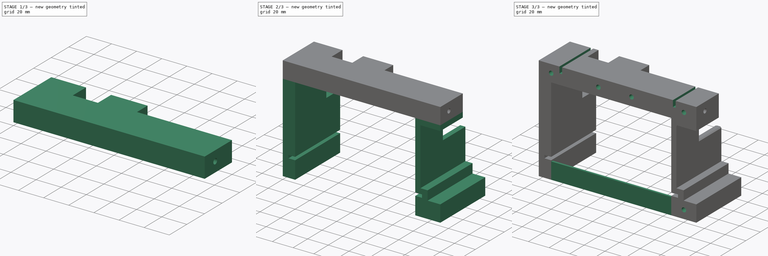
[diagram: build sequence overview — one tinted view per stage of 3, left to right]
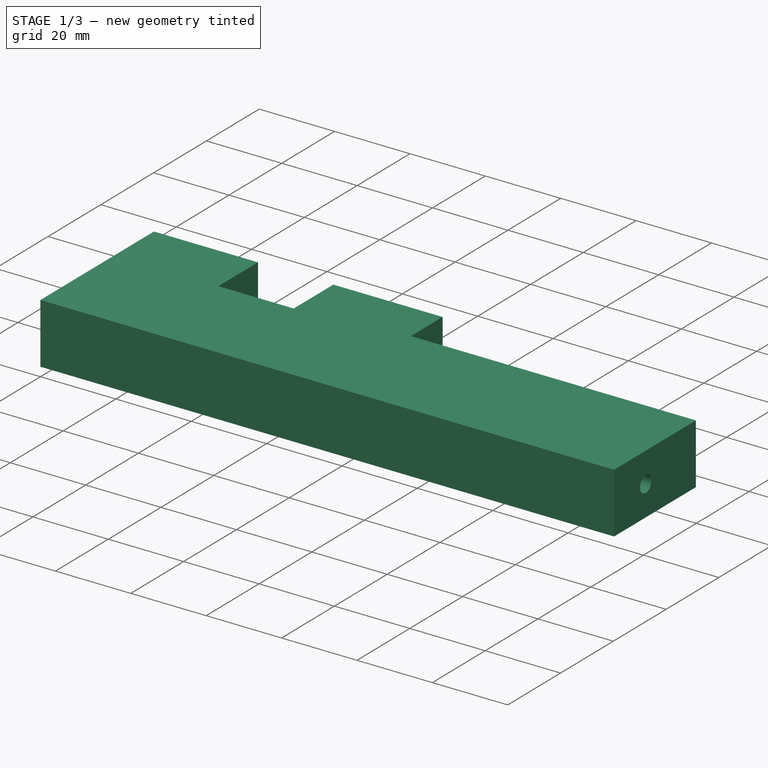
[diagram: stage 1 of 3 — iso view after this stage's code; geometry added in this stage tinted green]
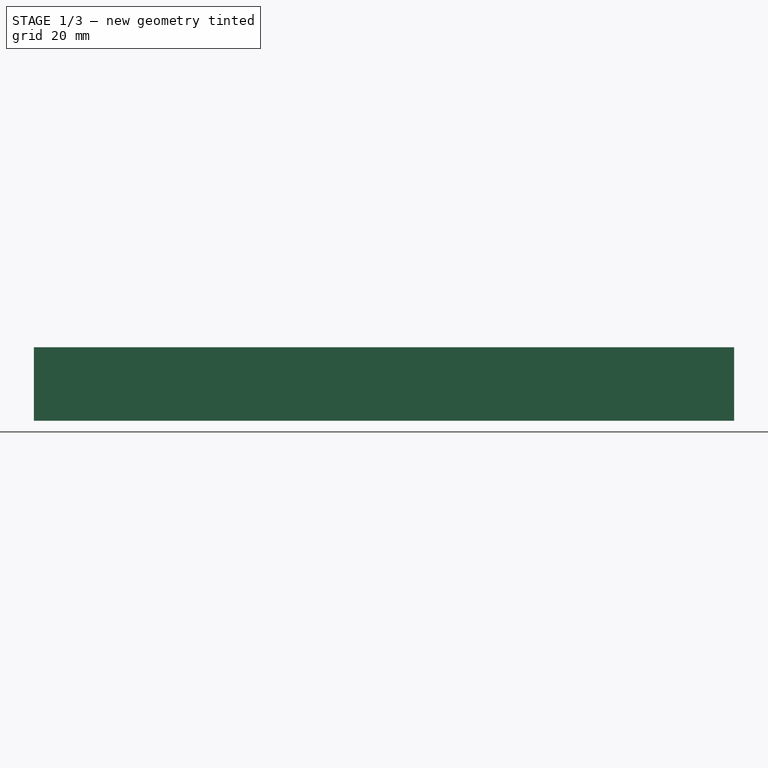
[diagram: stage 1 of 3 — front view after this stage's code; geometry added in this stage tinted green]
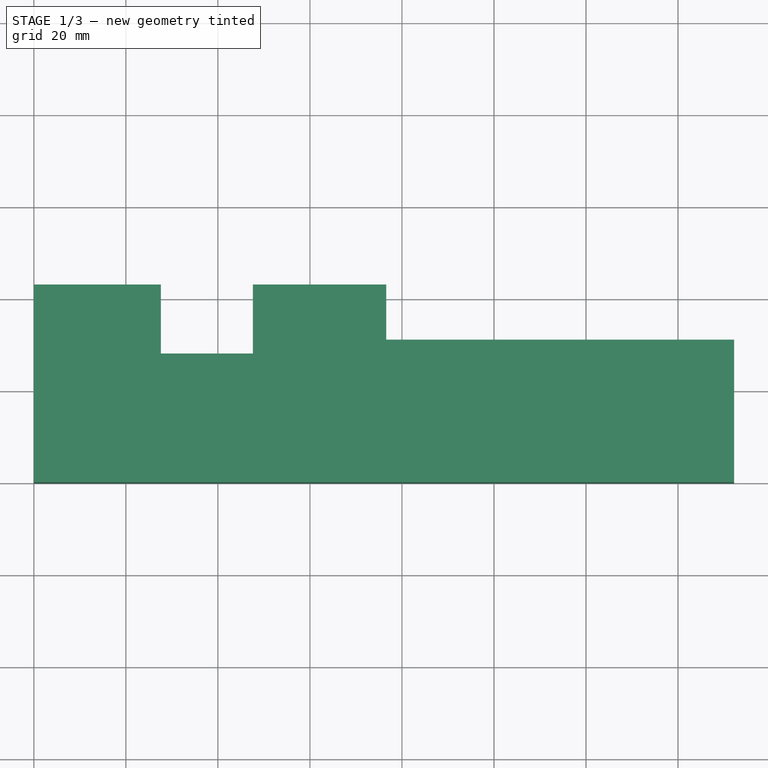
[diagram: stage 1 of 3 — top view after this stage's code; geometry added in this stage tinted green]
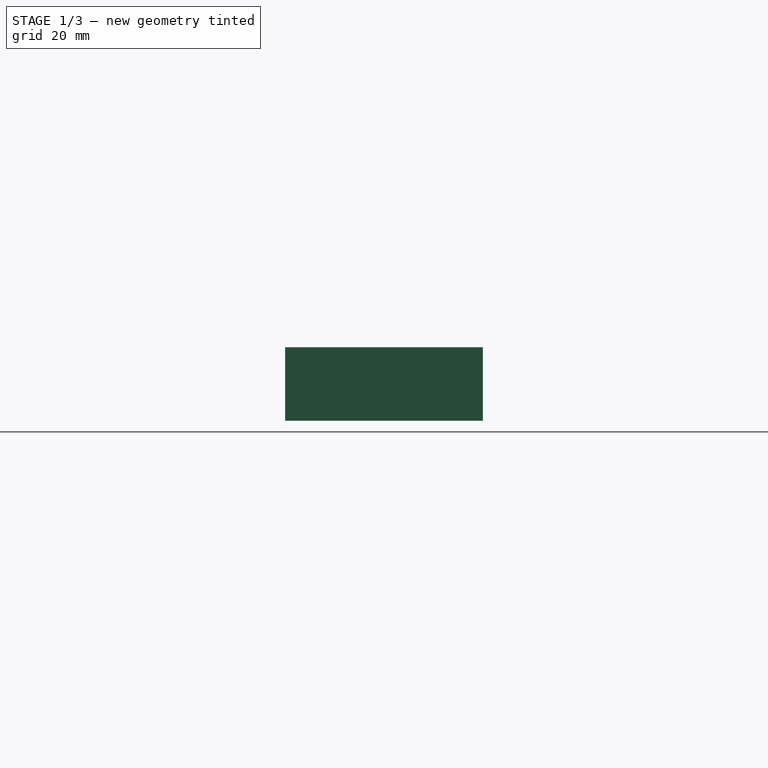
[diagram: stage 1 of 3 — right view after this stage's code; geometry added in this stage tinted green]
FCSTD DOCUMENT  (FreeCAD 0.21R33668 +7 (Git))
Label: ES-holder-end-other
License: All rights reserved
LicenseURL: http://en.wikipedia.org/wiki/All_rights_reserved
objects: Sketcher::SketchObject×7, PartDesign::Pocket×4, PartDesign::Pad×3, PartDesign::CoordinateSystem×1, PartDesign::Plane×1, PartDesign::Chamfer×1, PartDesign::Body×1, App::Part×1
note: 26 computed .brp shape members not serialized (recipe doc carries the construction recipe); baked Part::Feature solids carry a one-line shape summary decoded from their .brp
EXTERNAL_REF file=planB.FCStd obj=Spreadsheet

FEATURE [Sketcher::SketchObject] Sketch
  FullyConstrained = false
  MapMode = 5
  Support = -> [XY_Plane]
  expr: Constraints[33] = <<planB>>#<<data>>.es3_d + 1
  expr: Constraints[34] = <<planB>>#<<data>>.es6_d
  sketch-geometry (19):
    g0: LineSegment StartX=0 StartY=0 StartZ=0 EndX=0 EndY=43 EndZ=0
    g1: LineSegment StartX=152.2 StartY=31 StartZ=0 EndX=152.2 EndY=0 EndZ=0
    g2: LineSegment StartX=152.2 StartY=0 StartZ=0 EndX=0 EndY=0 EndZ=0
    g3: LineSegment StartX=22.6 StartY=-1.74507e-05 StartZ=0 EndX=20 EndY=-1.74507e-05 EndZ=0
    g4: LineSegment StartX=20 StartY=-1.74507e-05 StartZ=0 EndX=20 EndY=43 EndZ=0
    g5: LineSegment StartX=20 StartY=43 StartZ=0 EndX=22.6 EndY=43 EndZ=0
    g6: LineSegment StartX=22.6 StartY=43 StartZ=0 EndX=22.6 EndY=-1.74507e-05 EndZ=0
    g7: LineSegment StartX=132.2 StartY=0 StartZ=0 EndX=129.6 EndY=0 EndZ=0
    g8: LineSegment StartX=129.6 StartY=0 StartZ=0 EndX=129.6 EndY=31 EndZ=0
    g9: LineSegment StartX=129.6 StartY=31 StartZ=0 EndX=132.2 EndY=31 EndZ=0
    g10: LineSegment StartX=132.2 StartY=31 StartZ=0 EndX=132.2 EndY=0 EndZ=0
    g11: LineSegment StartX=76.6 StartY=43 StartZ=0 EndX=76.6 EndY=31 EndZ=0
    g12: LineSegment StartX=76.6 StartY=31 StartZ=0 EndX=152.2 EndY=31 EndZ=0
    g13: LineSegment StartX=27.6 StartY=43 StartZ=0 EndX=27.6 EndY=28 EndZ=0
    g14: LineSegment StartX=27.6 StartY=28 StartZ=0 EndX=47.6 EndY=28 EndZ=0
    g15: LineSegment StartX=47.6 StartY=28 StartZ=0 EndX=47.6 EndY=43 EndZ=0
    g16: LineSegment StartX=0 StartY=43 StartZ=0 EndX=27.6 EndY=43 EndZ=0
    g17: LineSegment StartX=27.6 StartY=43 StartZ=0 EndX=47.6 EndY=43 EndZ=0
    g18: LineSegment StartX=47.6 StartY=43 StartZ=0 EndX=76.6 EndY=43 EndZ=0
  constraints (54):
    c: Coincident(g-1,g0)
    c: PointOnObject(g0,g-2)
    c: Coincident(g0,g16)
    c: Coincident(g12,g1)
    c: PointOnObject(g1,g-1)
    c: Vertical(g1)
    c: Coincident(g1,g2)
    c: Coincident(g3,g4)
    c: Coincident(g4,g5)
    c: Coincident(g5,g6)
    c: Coincident(g6,g3)
    c: Horizontal(g3)
    c: Horizontal(g5)
    c: Vertical(g4)
    c: Vertical(g6)
    c: Coincident(g7,g8)
    c: Coincident(g8,g9)
    c: Coincident(g9,g10)
    c: Coincident(g10,g7)
    c: Horizontal(g7)
    c: Horizontal(g9)
    c: Vertical(g8)
    c: Vertical(g10)
    c: PointOnObject(g7,g2)
    c: Equal(g3,g7)
    c: Distance(g3,g4) = 2.6
    c: Coincident(g18,g11)
    c: Coincident(g11,g12)
    c: Horizontal(g12)
    c: PointOnObject(g8,g12)
    c: Vertical(g11)
    c: Distance(g0) = 43
    c: Distance(g1) = 31
    c: Distance(g5,g11) = 54
    c: Distance(g11,g8) = 53
    c: Distance(g7,g1) = 20
    c: Distance(g3,g0) = 20
    c: Coincident(g2,g0)
    c: Coincident(g13,g14)
    c: Horizontal(g14)
    c: Coincident(g14,g15)
    c: Vertical(g15)
    c: Coincident(g16,g17)
    c: Horizontal(g16)
    c: PointOnObject(g4,g16)
    c: Coincident(g17,g18)
    c: Horizontal(g17)
    c: Horizontal(g18)
    c: Coincident(g17,g15)
    c: Coincident(g16,g13)
    c: Vertical(g13)
    c: Distance(g13) = 15
    c: Distance(g14) = 20
    c: Distance(g5,g13) = 5
FEATURE [PartDesign::Pad] Pad
  Direction = (0,0,1)
  Length = 16
  Length2 = 10
  Profile = -> Sketch
  ReferenceAxis = -> Sketch [N_Axis]
  Type = 0
FEATURE [Sketcher::SketchObject] Sketch001
  FullyConstrained = false
  MapMode = 5
  Placement = pos=(0,0,0) rot=(1,0,0;1.5708rad)
  Support = -> [XZ_Plane]
  expr: Constraints[52] = <<planB>>#<<data>>.es6_d + 1 + <<planB>>#<<data>>.es3_d
  expr: Constraints[60] = <<planB>>#<<data>>.insert_diameter
  expr: Constraints[61] = <<planB>>#<<data>>.insert_d + 5
  sketch-geometry (27):
    g0: LineSegment StartX=20 StartY=0 StartZ=0 EndX=20 EndY=17.2745 EndZ=0
    g1: LineSegment StartX=132.2 StartY=0 StartZ=0 EndX=132.2 EndY=26.3444 EndZ=0
    g2: LineSegment StartX=20 StartY=0 StartZ=0 EndX=22.6 EndY=0 EndZ=0
    g3: LineSegment StartX=22.6 StartY=0 StartZ=0 EndX=22.6 EndY=6 EndZ=0
    g4: LineSegment StartX=22.6 StartY=6 StartZ=0 EndX=20 EndY=6 EndZ=0
    g5: LineSegment StartX=20 StartY=6 StartZ=0 EndX=20 EndY=0 EndZ=0
    g6: LineSegment StartX=20 StartY=10 StartZ=0 EndX=22.6 EndY=10 EndZ=0
    g7: LineSegment StartX=22.6 StartY=10 StartZ=0 EndX=22.6 EndY=16 EndZ=0
    g8: LineSegment StartX=22.6 StartY=16 StartZ=0 EndX=20 EndY=16 EndZ=0
    g9: LineSegment StartX=20 StartY=16 StartZ=0 EndX=20 EndY=10 EndZ=0
    g10: LineSegment StartX=132.2 StartY=10 StartZ=0 EndX=129.6 EndY=10 EndZ=0
    g11: LineSegment StartX=129.6 StartY=10 StartZ=0 EndX=129.6 EndY=16 EndZ=0
    g12: LineSegment StartX=129.6 StartY=16 StartZ=0 EndX=132.2 EndY=16 EndZ=0
    g13: LineSegment StartX=132.2 StartY=16 StartZ=0 EndX=132.2 EndY=10 EndZ=0
    g14: LineSegment StartX=132.2 StartY=6 StartZ=0 EndX=129.6 EndY=6 EndZ=0
    g15: LineSegment StartX=129.6 StartY=6 StartZ=0 EndX=129.6 EndY=0 EndZ=0
    g16: LineSegment StartX=129.6 StartY=0 StartZ=0 EndX=132.2 EndY=0 EndZ=0
    g17: LineSegment StartX=132.2 StartY=0 StartZ=0 EndX=132.2 EndY=6 EndZ=0
    g18: Circle CenterX=12 CenterY=8 CenterZ=0 NormalX=0 NormalY=0 NormalZ=1 AngleXU=0 Radius=2.15
    g19: Circle CenterX=89.6 CenterY=8 CenterZ=0 NormalX=0 NormalY=0 NormalZ=1 AngleXU=0 Radius=2.15
    g20: Circle CenterX=140.2 CenterY=8 CenterZ=0 NormalX=0 NormalY=0 NormalZ=1 AngleXU=0 Radius=2.15
    g21: LineSegment StartX=12 StartY=8 StartZ=0 EndX=140.2 EndY=8 EndZ=0
    g22: Circle CenterX=57.6 CenterY=8 CenterZ=0 NormalX=0 NormalY=0 NormalZ=1 AngleXU=0 Radius=2.15
    g23: Circle CenterX=12 CenterY=-77 CenterZ=0 NormalX=0 NormalY=0 NormalZ=1 AngleXU=0 Radius=2.15
    g24: Circle CenterX=140.2 CenterY=-77 CenterZ=0 NormalX=0 NormalY=0 NormalZ=1 AngleXU=0 Radius=2.15
    g25: LineSegment StartX=12 StartY=-77 StartZ=0 EndX=140.2 EndY=-77 EndZ=0
    g26: LineSegment StartX=12 StartY=8 StartZ=0 EndX=12 EndY=-77 EndZ=0
  constraints (77):
    c: PointOnObject(g0,g-1)
    c: Vertical(g0)
    c: PointOnObject(g1,g-1)
    c: Vertical(g1)
    c: DistanceX(g0) = 20
    c: Coincident(g2,g3)
    c: Coincident(g3,g4)
    c: Coincident(g4,g5)
    c: Coincident(g5,g2)
    c: Horizontal(g2)
    c: Horizontal(g4)
    c: Vertical(g3)
    c: Vertical(g5)
    c: Coincident(g2,g0)
    c: Coincident(g6,g7)
    c: Coincident(g7,g8)
    c: Coincident(g8,g9)
    c: Coincident(g9,g6)
    c: Horizontal(g6)
    c: Horizontal(g8)
    c: Vertical(g7)
    c: Vertical(g9)
    c: PointOnObject(g6,g0)
    c: Coincident(g10,g11)
    c: Coincident(g11,g12)
    c: Coincident(g12,g13)
    c: Coincident(g13,g10)
    c: Horizontal(g10)
    c: Horizontal(g12)
    c: Vertical(g11)
    c: Vertical(g13)
    c: PointOnObject(g10,g1)
    c: Coincident(g14,g15)
    c: Coincident(g15,g16)
    c: Coincident(g16,g17)
    c: Coincident(g17,g14)
    c: Horizontal(g14)
    c: Horizontal(g16)
    c: Vertical(g15)
    c: Vertical(g17)
    c: PointOnObject(g14,g1)
    c: PointOnObject(g15,g-1)
    c: Equal(g2,g16)
    c: Equal(g16,g10)
    c: Equal(g10,g8)
    c: Equal(g3,g7)
    c: Equal(g7,g11)
    c: Equal(g11,g15)
    c: Distance(g16) = 2.6
    c: Distance(g11) = 6
    c: Distance(g14,g10) = 4
    c: Distance(g4,g6) = 4
    c: Distance(g7,g11) = 107
    c: Coincident(g21,g18)
    c: Coincident(g21,g20)
    c: Horizontal(g21)
    c: PointOnObject(g19,g21)
    c: Equal(g20,g19)
    c: Equal(g19,g18)
    c: DistanceY(g18) = 8
    c: Diameter(g18) = 4.3
    c: DistanceX(g18) = 12
    c: PointOnObject(g22,g21)
    c: Equal(g22,g19)
    c: Distance(g22,g3) = 35
    c: Distance(g19,g11) = 40
    c: Distance(g20,g13) = 8
    c: Equal(g24,g23)
    c: Equal(g23,g22)
    c: Coincident(g25,g23)
    c: Coincident(g25,g24)
    c: Horizontal(g25)
    c: Equal(g21,g25)
    c: Coincident(g26,g18)
    c: Coincident(g26,g23)
    c: Vertical(g26)
    c: Distance(g26) = 85
FEATURE [PartDesign::CoordinateSystem] LCS_0
  AttacherType = Attacher::AttachEngine3D
  MapMode = 2
  Support = -> [X_Axis001]
FEATURE [Sketcher::SketchObject] Sketch002
  FullyConstrained = true
  MapMode = 5
  Placement = pos=(0,0,0) rot=(0.57735,0.57735,0.57735;2.0944rad)
  Support = -> [YZ_Plane]
  expr: Constraints[0] = <<planB>>#<<data>>.insert_d + 5
  expr: Constraints[2] = <<planB>>#<<data>>.insert_diameter
  sketch-geometry (1):
    g0: Circle CenterX=12 CenterY=8 CenterZ=0 NormalX=0 NormalY=0 NormalZ=1 AngleXU=0 Radius=2.15
  constraints (3):
    c: DistanceX(g0) = 12
    c: DistanceY(g0) = 8
    c: Diameter(g0) = 4.3
FEATURE [PartDesign::Pocket] Pocket001
  BaseFeature = -> Pad
  Direction = (-1,2e-16,-3e-16)
  Length = 8
  Length2 = 5
  Profile = -> Sketch002
  ReferenceAxis = -> Sketch002 [N_Axis]
  Reversed = true
  Type = 0
  expr: Length = <<planB>>#<<data>>.insert_d + 1
FEATURE [PartDesign::Plane] DatumPlane
  AttachmentOffset = pos=(0,0,152.2) rot=(0,0,1;0rad)
  Length = 60
  MapMode = 5
  Placement = pos=(152.2,-3.38e-14,3.38e-14) rot=(0.57735,0.57735,0.57735;2.0944rad)
  ResizeMode = 0
  Support = -> [YZ_Plane]
  Width = 60
FEATURE [Sketcher::SketchObject] Sketch003
  FullyConstrained = true
  MapMode = 5
  Placement = pos=(152.2,-3.38e-14,3.38e-14) rot=(0.57735,0.57735,0.57735;2.0944rad)
  Support = -> [DatumPlane]
  expr: Constraints[0] = <<planB>>#<<data>>.insert_diameter
  expr: Constraints[1] = <<planB>>#<<data>>.insert_d + 5
  sketch-geometry (1):
    g0: Circle CenterX=12 CenterY=8 CenterZ=0 NormalX=0 NormalY=0 NormalZ=1 AngleXU=0 Radius=2.15
  constraints (3):
    c: Diameter(g0) = 4.3
    c: DistanceX(g0) = 12
    c: DistanceY(g0) = 8
FEATURE [PartDesign::Pocket] Pocket002
  BaseFeature = -> Pocket001
  Direction = (-1,1e-16,-1e-16)
  Length = 8
  Length2 = 5
  Profile = -> Sketch003
  ReferenceAxis = -> Sketch003 [N_Axis]
  Type = 0
  expr: Length = <<planB>>#<<data>>.insert_d + 1
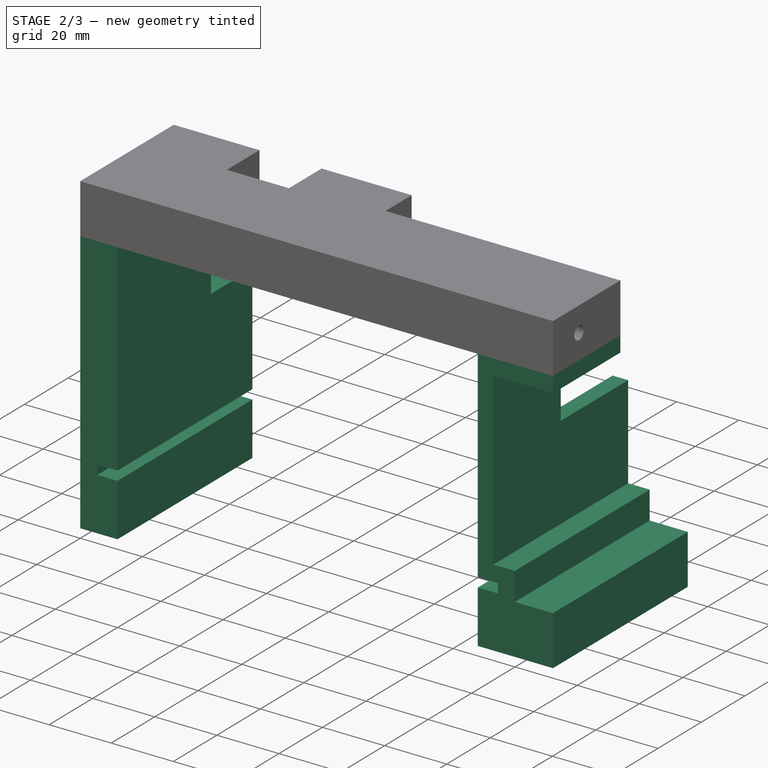
[diagram: stage 2 of 3 — iso view after this stage's code; geometry added in this stage tinted green]
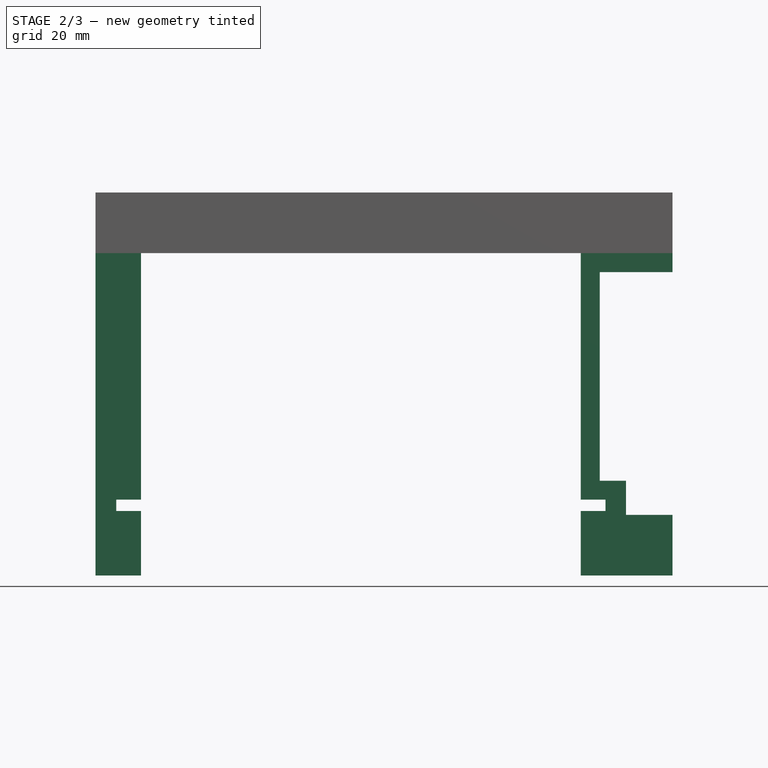
[diagram: stage 2 of 3 — front view after this stage's code; geometry added in this stage tinted green]
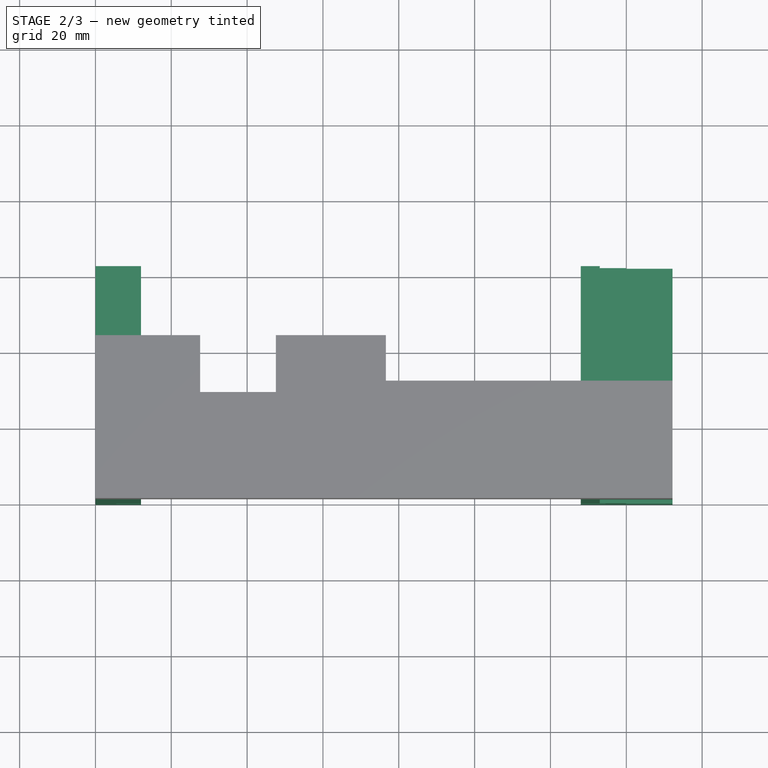
[diagram: stage 2 of 3 — top view after this stage's code; geometry added in this stage tinted green]
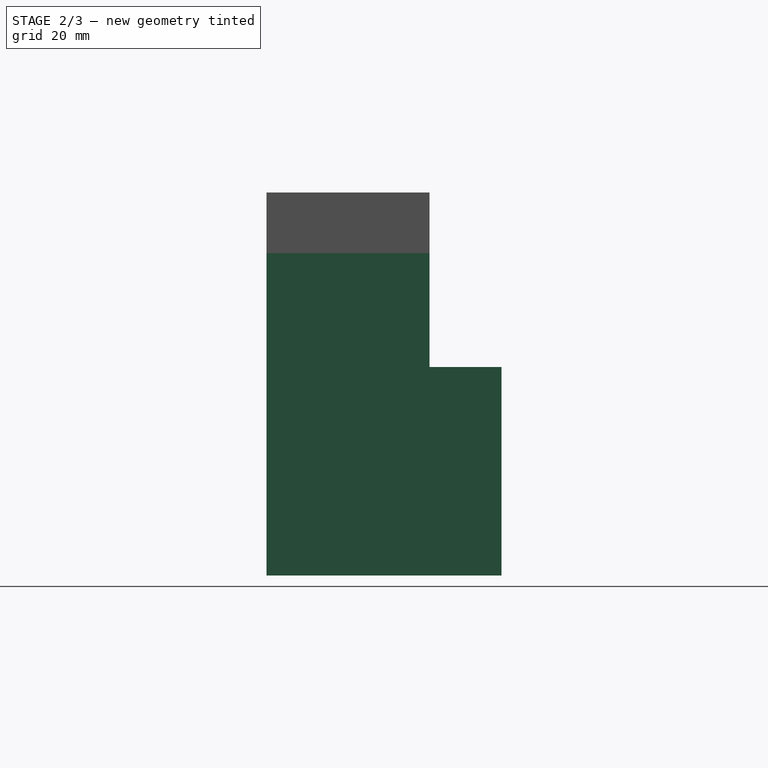
[diagram: stage 2 of 3 — right view after this stage's code; geometry added in this stage tinted green]
FEATURE [Sketcher::SketchObject] Sketch004
  FullyConstrained = false
  MapMode = 5
  Placement = pos=(0,0,0) rot=(1,0,0;1.5708rad)
  Support = -> [XZ_Plane]
  sketch-geometry (25):
    g0: LineSegment StartX=128 StartY=0 StartZ=0 EndX=152.2 EndY=0 EndZ=0
    g1: LineSegment StartX=128 StartY=-65 StartZ=0 EndX=128 EndY=0 EndZ=0
    g2: LineSegment StartX=0 StartY=0 StartZ=0 EndX=12 EndY=0 EndZ=0
    g3: LineSegment StartX=12 StartY=0 StartZ=0 EndX=12 EndY=-65 EndZ=0
    g4: LineSegment StartX=0 StartY=-65 StartZ=0 EndX=0 EndY=0 EndZ=0
    g5: LineSegment StartX=0 StartY=-65 StartZ=0 EndX=0 EndY=-85 EndZ=0
    g6: LineSegment StartX=0 StartY=-85 StartZ=0 EndX=12 EndY=-85 EndZ=0
    g7: LineSegment StartX=12 StartY=-85 StartZ=0 EndX=12 EndY=-68 EndZ=0
    g8: LineSegment StartX=12 StartY=-68 StartZ=0 EndX=5.5 EndY=-68 EndZ=0
    g9: LineSegment StartX=5.5 StartY=-68 StartZ=0 EndX=5.5 EndY=-65 EndZ=0
    g10: LineSegment StartX=134.5 StartY=-65 StartZ=0 EndX=134.5 EndY=-68 EndZ=0
    g11: LineSegment StartX=134.5 StartY=-68 StartZ=0 EndX=128 EndY=-68 EndZ=0
    g12: LineSegment StartX=128 StartY=-68 StartZ=0 EndX=128 EndY=-85 EndZ=0
    g13: LineSegment StartX=128 StartY=-85 StartZ=0 EndX=152.2 EndY=-85 EndZ=0
    g14: LineSegment StartX=152.2 StartY=-85 StartZ=0 EndX=152.2 EndY=-69 EndZ=0
    g15: LineSegment StartX=12 StartY=-65 StartZ=0 EndX=5.5 EndY=-65 EndZ=0
    g16: LineSegment StartX=5.5 StartY=-65 StartZ=0 EndX=0 EndY=-65 EndZ=0
    g17: LineSegment StartX=134.5 StartY=-65 StartZ=0 EndX=128 EndY=-65 EndZ=0
    g18: LineSegment StartX=152.2 StartY=0 StartZ=0 EndX=152.2 EndY=-5 EndZ=0
    g19: LineSegment StartX=152.2 StartY=-5 StartZ=0 EndX=152.2 EndY=-69 EndZ=0
    g20: LineSegment StartX=152.2 StartY=-5 StartZ=0 EndX=133 EndY=-5 EndZ=0
    g21: LineSegment StartX=133 StartY=-5 StartZ=0 EndX=133 EndY=-60 EndZ=0
    g22: LineSegment StartX=133 StartY=-60 StartZ=0 EndX=139.92 EndY=-60 EndZ=0
    g23: LineSegment StartX=139.92 StartY=-60 StartZ=0 EndX=139.92 EndY=-69 EndZ=0
    g24: LineSegment StartX=139.92 StartY=-69 StartZ=0 EndX=152.2 EndY=-69 EndZ=0
  constraints (71):
    c: Coincident(g0,g18)
    c: Coincident(g17,g1)
    c: Coincident(g1,g0)
    c: Horizontal(g0)
    c: Vertical(g1)
    c: PointOnObject(g0,g-1)
    c: Coincident(g2,g3)
    c: Coincident(g3,g15)
    c: Coincident(g16,g4)
    c: Coincident(g4,g2)
    c: Horizontal(g2)
    c: Vertical(g3)
    c: Vertical(g4)
    c: Equal(g3,g1)
    c: Distance(g2,g1) = 116
    c: DistanceX(g2,g2) = 12
    c: Coincident(g2,g-1)
    c: Coincident(g16,g5)
    c: Vertical(g5)
    c: Coincident(g5,g6)
    c: Horizontal(g6)
    c: Coincident(g6,g7)
    c: Vertical(g7)
    c: Coincident(g7,g8)
    c: Horizontal(g8)
    c: Coincident(g8,g9)
    c: Vertical(g10)
    c: Coincident(g10,g11)
    c: Horizontal(g11)
    c: Coincident(g11,g12)
    c: Vertical(g12)
    c: Coincident(g12,g13)
    c: Horizontal(g13)
    c: Coincident(g13,g14)
    c: Vertical(g14)
    c: Vertical(g9)
    c: Coincident(g15,g16)
    c: Horizontal(g15)
    c: Horizontal(g16)
    c: Horizontal(g17)
    c: Coincident(g17,g10)
    c: Coincident(g9,g15)
    c: Equal(g9,g10)
    c: Equal(g17,g15)
    c: Equal(g7,g12)
    c: Distance(g9) = 3
    c: PointOnObject(g3,g7)
    c: DistanceY(g7,g7) = 17
    c: Distance(g15) = 6.5
    c: PointOnObject(g11,g1)
    c: DistanceX(g0) = 152.2
    c: Vertical(g18)
    c: Vertical(g19)
    c: Horizontal(g20)
    c: Coincident(g20,g21)
    c: Vertical(g21)
    c: Coincident(g21,g22)
    c: Horizontal(g22)
    c: Distance(g20,g1) = 5
    c: DistanceY(g4,g4) = 65
    c: Coincident(g22,g23)
    c: Vertical(g23)
    c: Coincident(g23,g24)
    c: Coincident(g24,g14)
    c: Horizontal(g24)
    c: Coincident(g19,g14)
    c: DistanceY(g18,g18) = 5
    c: Distance(g21,g17) = 5
    c: Coincident(g20,g19)
    c: Coincident(g18,g20)
    c: DistanceY(g14,g14) = 16
FEATURE [PartDesign::Pad] Pad001
  BaseFeature = -> Pocket002
  Direction = (0,-1,-2e-16)
  Length = 62
  Length2 = 10
  Profile = -> Sketch004
  ReferenceAxis = -> Sketch004 [N_Axis]
  Reversed = true
  Type = 0
FEATURE [Sketcher::SketchObject] Sketch005
  FullyConstrained = false
  MapMode = 5
  Support = -> [XY_Plane]
  expr: Constraints[35] = <<planB>>#<<data>>.es3_d + 1
  expr: Constraints[36] = <<planB>>#<<data>>.es6_d
  sketch-geometry (18):
    g0: LineSegment StartX=0 StartY=0 StartZ=0 EndX=0 EndY=43 EndZ=0
    g1: LineSegment StartX=152.2 StartY=31 StartZ=0 EndX=152.2 EndY=0 EndZ=0
    g2: LineSegment StartX=152.2 StartY=0 StartZ=0 EndX=0 EndY=0 EndZ=0
    g3: LineSegment StartX=22.6 StartY=0 StartZ=0 EndX=20 EndY=0 EndZ=0
    g4: LineSegment StartX=20 StartY=0 StartZ=0 EndX=20 EndY=43 EndZ=0
    g5: LineSegment StartX=20 StartY=43 StartZ=0 EndX=22.6 EndY=43 EndZ=0
    g6: LineSegment StartX=22.6 StartY=43 StartZ=0 EndX=22.6 EndY=0 EndZ=0
    g7: LineSegment StartX=132.2 StartY=0 StartZ=0 EndX=129.6 EndY=0 EndZ=0
    g8: LineSegment StartX=129.6 StartY=0 StartZ=0 EndX=129.6 EndY=31 EndZ=0
    g9: LineSegment StartX=129.6 StartY=31 StartZ=0 EndX=132.2 EndY=31 EndZ=0
    g10: LineSegment StartX=132.2 StartY=31 StartZ=0 EndX=132.2 EndY=0 EndZ=0
    g11: LineSegment StartX=0 StartY=43 StartZ=0 EndX=76.6 EndY=43 EndZ=0
    g12: LineSegment StartX=76.6 StartY=43 StartZ=0 EndX=76.6 EndY=31 EndZ=0
    g13: LineSegment StartX=76.6 StartY=31 StartZ=0 EndX=152.2 EndY=31 EndZ=0
    g14: LineSegment StartX=-256.513 StartY=459.686 StartZ=0 EndX=467.29 EndY=459.686 EndZ=0
    g15: LineSegment StartX=467.29 StartY=459.686 StartZ=0 EndX=467.29 EndY=-198.667 EndZ=0
    g16: LineSegment StartX=467.29 StartY=-198.667 StartZ=0 EndX=-256.513 EndY=-198.667 EndZ=0
    g17: LineSegment StartX=-256.513 StartY=-198.667 StartZ=0 EndX=-256.513 EndY=459.686 EndZ=0
  constraints (48):
    c: Coincident(g-1,g0)
    c: PointOnObject(g0,g-2)
    c: Coincident(g0,g11)
    c: Coincident(g13,g1)
    c: PointOnObject(g1,g-1)
    c: Vertical(g1)
    c: Coincident(g1,g2)
    c: Coincident(g3,g4)
    c: Coincident(g4,g5)
    c: Coincident(g5,g6)
    c: Coincident(g6,g3)
    c: Horizontal(g3)
    c: Horizontal(g5)
    c: Vertical(g4)
    c: Vertical(g6)
    c: Coincident(g7,g8)
    c: Coincident(g8,g9)
    c: Coincident(g9,g10)
    c: Coincident(g10,g7)
    c: Horizontal(g7)
    c: Horizontal(g9)
    c: Vertical(g8)
    c: Vertical(g10)
    c: PointOnObject(g7,g2)
    c: Equal(g3,g7)
    c: Distance(g3,g4) = 2.6
    c: Coincident(g11,g12)
    c: Horizontal(g11)
    c: PointOnObject(g4,g11)
    c: Coincident(g12,g13)
    c: Horizontal(g13)
    c: PointOnObject(g8,g13)
    c: Vertical(g12)
    c: Distance(g0) = 43
    c: Distance(g1) = 31
    c: Distance(g5,g12) = 54
    c: Distance(g12,g8) = 53
    c: Distance(g7,g1) = 20
    c: Distance(g3,g0) = 20
    c: Coincident(g2,g0)
    c: Coincident(g14,g15)
    c: Coincident(g15,g16)
    c: Coincident(g16,g17)
    c: Coincident(g17,g14)
    c: Horizontal(g14)
    c: Horizontal(g16)
    c: Vertical(g15)
    c: Vertical(g17)
FEATURE [PartDesign::Pocket] Pocket003
  BaseFeature = -> Pad001
  Direction = (0,0,-1)
  Length = 30
  Length2 = 5
  Profile = -> Sketch005
  ReferenceAxis = -> Sketch005 [N_Axis]
  Type = 0
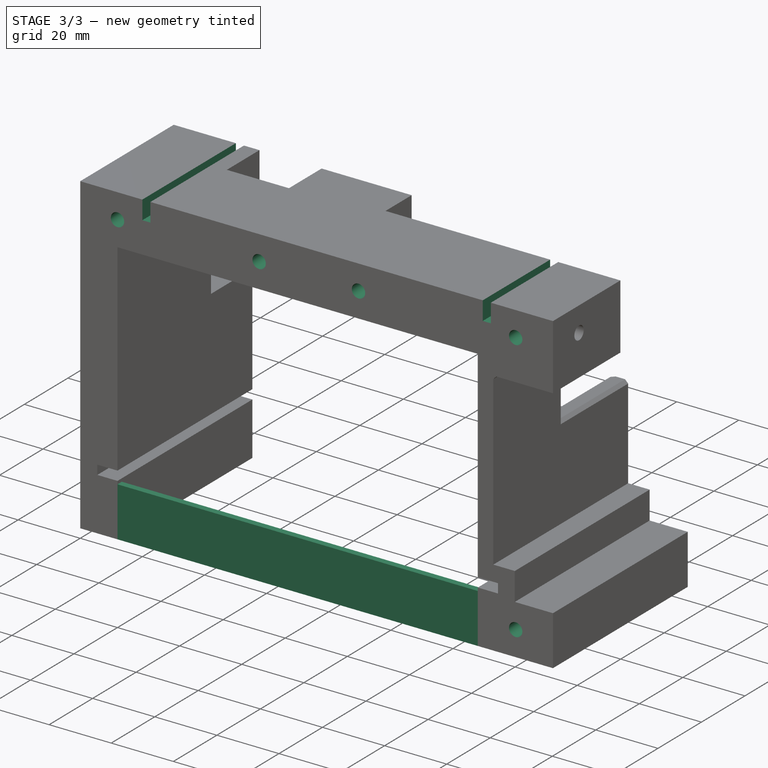
[diagram: stage 3 of 3 — iso view after this stage's code; geometry added in this stage tinted green]
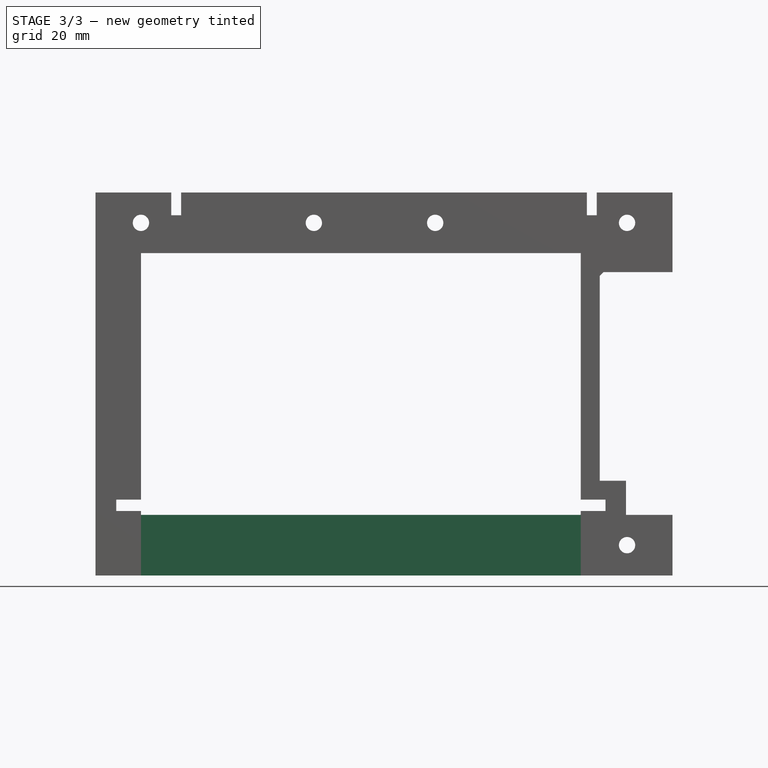
[diagram: stage 3 of 3 — front view after this stage's code; geometry added in this stage tinted green]
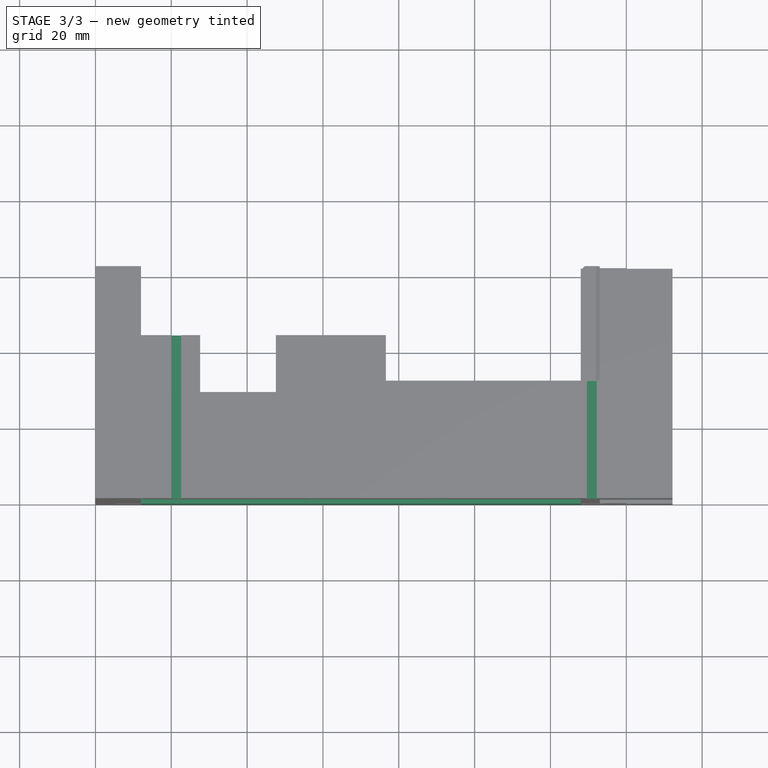
[diagram: stage 3 of 3 — top view after this stage's code; geometry added in this stage tinted green]
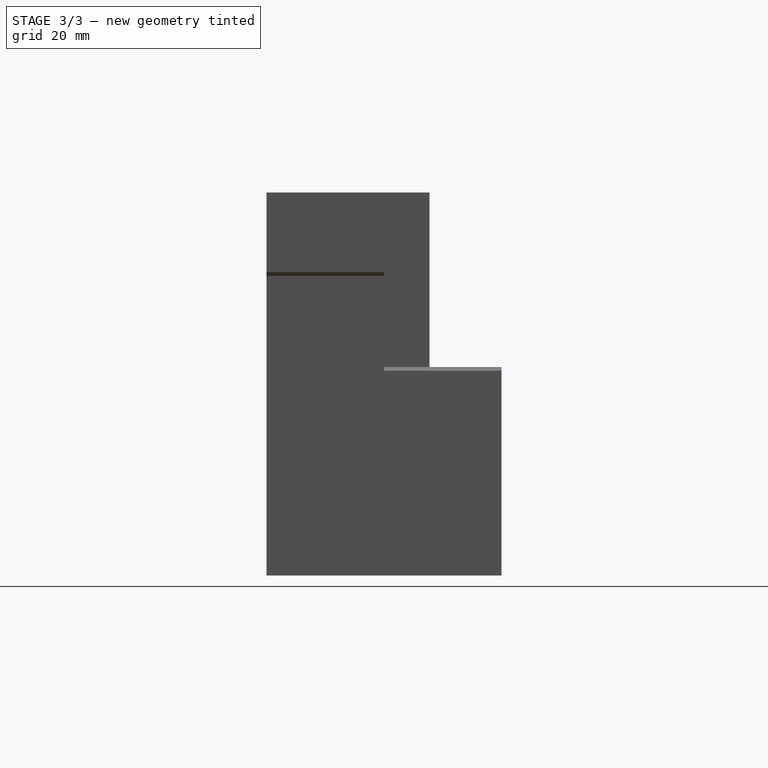
[diagram: stage 3 of 3 — right view after this stage's code; geometry added in this stage tinted green]
FEATURE [PartDesign::Chamfer] Chamfer
  Angle = 45
  Base = -> Pocket003 [Edge74,Edge76,Edge78,Edge80,Edge36,Edge5]
  BaseFeature = -> Pocket003
  ChamferType = 0
  FlipDirection = false
  Size = 1
  Size2 = 1
  SupportTransform = false
  UseAllEdges = false
FEATURE [PartDesign::Pocket] Pocket
  BaseFeature = -> Chamfer
  Direction = (0,1,2e-16)
  Length = 5
  Length2 = 5
  Profile = -> Sketch001
  ReferenceAxis = -> Sketch001 [N_Axis]
  Type = 1
FEATURE [Sketcher::SketchObject] Sketch006
  FullyConstrained = true
  MapMode = 5
  Placement = pos=(0,0,0) rot=(1,0,0;1.5708rad)
  Support = -> [XZ_Plane]
  sketch-geometry (4):
    g0: LineSegment StartX=12 StartY=-85 StartZ=0 EndX=128 EndY=-85 EndZ=0
    g1: LineSegment StartX=128 StartY=-85 StartZ=0 EndX=128 EndY=-69 EndZ=0
    g2: LineSegment StartX=128 StartY=-69 StartZ=0 EndX=12 EndY=-69 EndZ=0
    g3: LineSegment StartX=12 StartY=-69 StartZ=0 EndX=12 EndY=-85 EndZ=0
  constraints (12):
    c: Coincident(g0,g1)
    c: Coincident(g1,g2)
    c: Coincident(g2,g3)
    c: Coincident(g3,g0)
    c: Horizontal(g0)
    c: Horizontal(g2)
    c: Vertical(g1)
    c: Vertical(g3)
    c: DistanceY(g1,g1) = 16
    c: DistanceX(g2) = 12
    c: DistanceX(g1) = 128
    c: DistanceY(g0) = -85
FEATURE [PartDesign::Pad] Pad002
  BaseFeature = -> Pocket
  Direction = (0,-1,-2e-16)
  Length = 2
  Length2 = 10
  Profile = -> Sketch006
  ReferenceAxis = -> Sketch006 [N_Axis]
  Reversed = true
  Type = 0
FEATURE [PartDesign::Body] Body
  Group = -> [Sketch,Pad,Sketch001,Sketch002,Pocket001,DatumPlane,Sketch003,Pocket002,Sketch004,Pad001,Sketch005,Pocket003,Chamfer,Pocket,Sketch006,Pad002]
  Origin = -> Origin
  Tip = -> Pad002
FEATURE [App::Part] ES_holder
  Group = -> [LCS_0,Body]
  Origin = -> Origin001
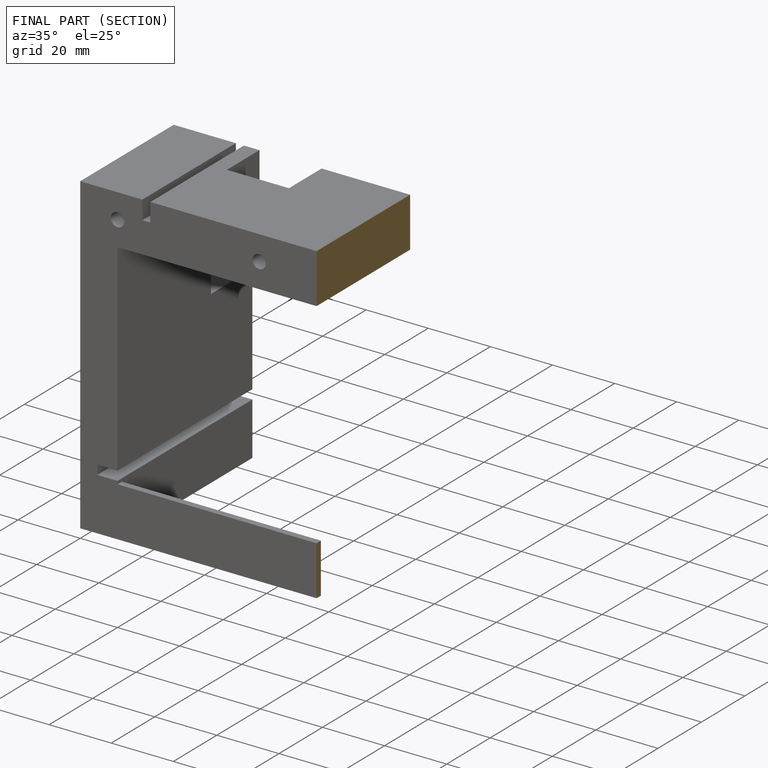
[diagram: finished part — half-section view (interior)]
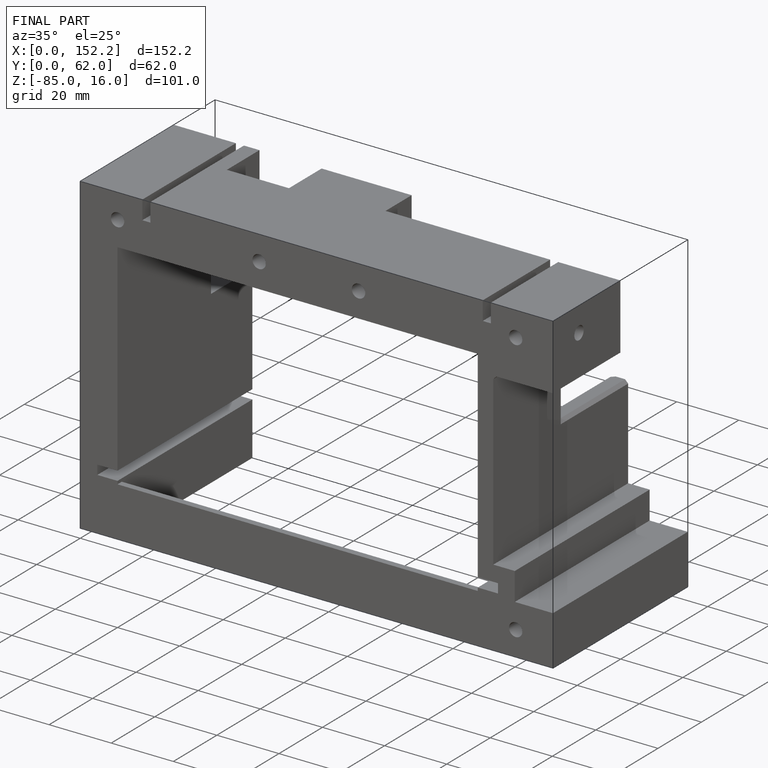
[diagram: finished part — iso view with bounding-box wireframe]
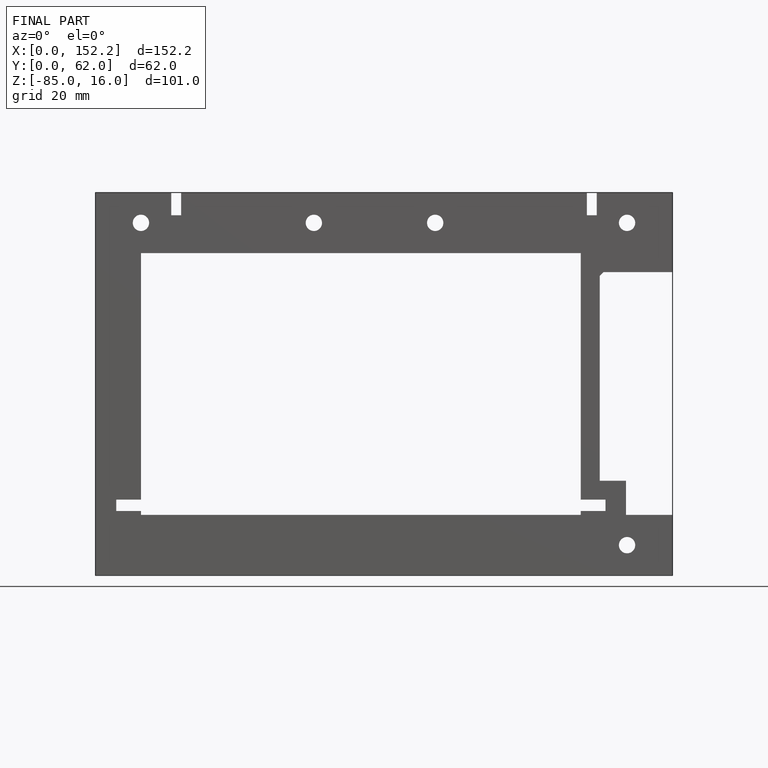
[diagram: finished part — front view with bounding-box wireframe]
